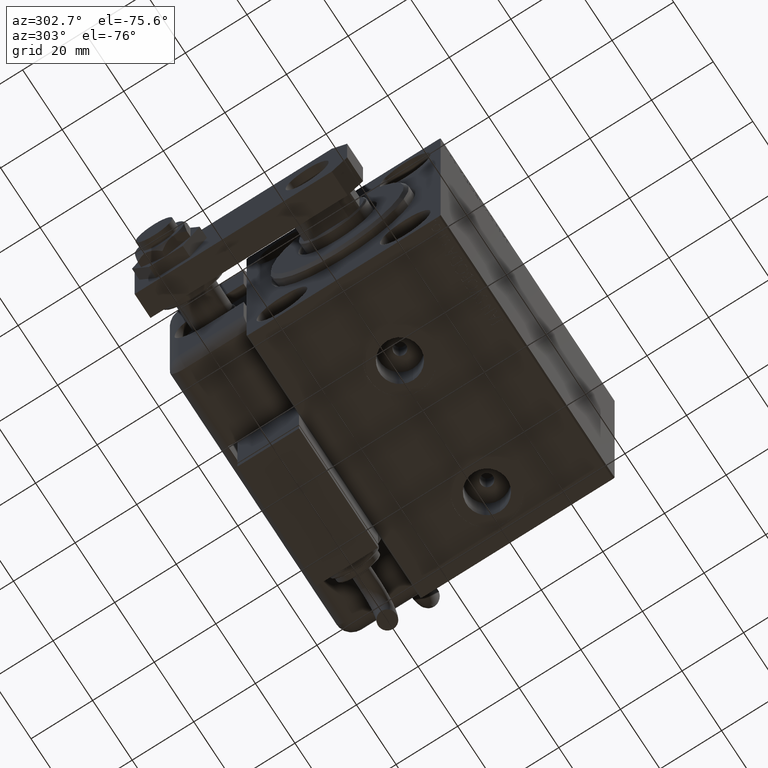
[diagram: clean part render]
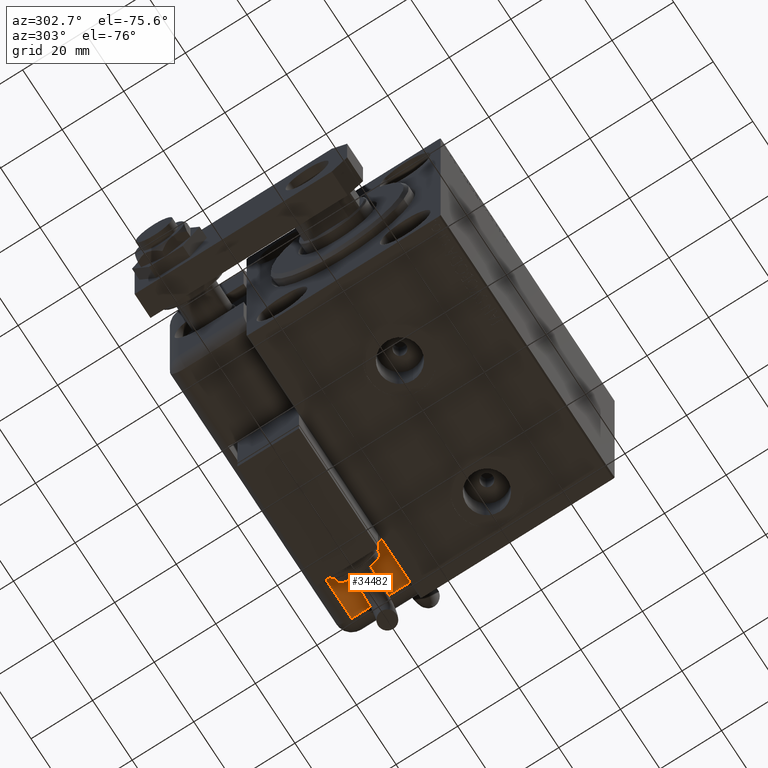
[diagram: same view with one face highlighted and labeled with its STEP entity id]
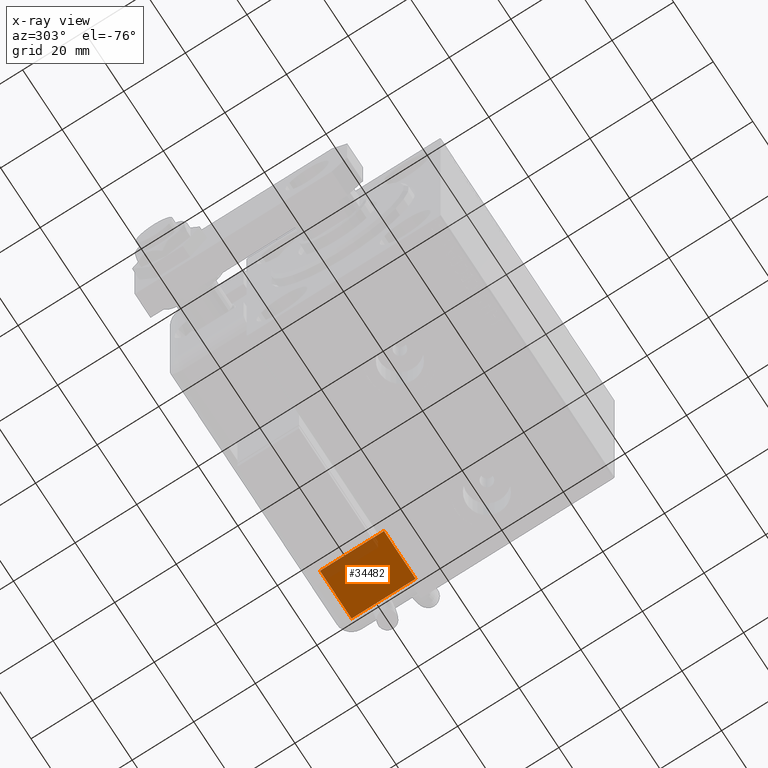
[diagram: x-ray of the same camera — body ghosted, the highlighted face saturated]
A machine part, auxiliary view. The second image highlights one B-rep face of the part: STEP entity #34482.
The next image is the same camera in x-ray: the body ghosted, the highlighted face saturated — about 16% of this face is hidden behind the body in this view.
In plain terms, the highlighted planar face has unit normal (0, 0, 1).
Its self-contained STEP definition (entity closure, byte-faithful):
#2152 = CARTESIAN_POINT ( 'NONE',  ( -28.99999999999999645, 20.79999999999998295, 21.00000000000000355 ) ) ;
#2504 = VECTOR ( 'NONE', #30616, 1000.000000000000000 ) ;
#4242 = DIRECTION ( 'NONE',  ( 1.000000000000000000, 0.000000000000000000, -0.000000000000000000 ) ) ;
#7071 = AXIS2_PLACEMENT_3D ( 'NONE', #55737, #4242, #12898 ) ;
#7696 = VECTOR ( 'NONE', #25505, 1000.000000000000000 ) ;
#10885 = EDGE_CURVE ( 'NONE', #19499, #24761, #35550, .T. ) ;
#11040 = LINE ( 'NONE', #44046, #7696 ) ;
#12391 = LINE ( 'NONE', #45991, #44566 ) ;
#12898 = DIRECTION ( 'NONE',  ( -0.000000000000000000, 0.000000000000000000, -1.000000000000000000 ) ) ;
#15262 = CARTESIAN_POINT ( 'NONE',  ( -28.99999999999999645, -9.421223957302265857E-15, 5.000000000000004441 ) ) ;
#19499 = VERTEX_POINT ( 'NONE', #2152 ) ;
#20819 = EDGE_CURVE ( 'NONE', #19499, #56572, #11040, .T. ) ;
#21636 = VECTOR ( 'NONE', #35101, 1000.000000000000000 ) ;
#24761 = VERTEX_POINT ( 'NONE', #40376 ) ;
#25505 = DIRECTION ( 'NONE',  ( 0.000000000000000000, 0.000000000000000000, -1.000000000000000000 ) ) ;
#29353 = EDGE_CURVE ( 'NONE', #24761, #45510, #30770, .T. ) ;
#30469 = CARTESIAN_POINT ( 'NONE',  ( -28.99999999999999645, -9.421223957302265857E-15, 89.00000000000000000 ) ) ;
#30616 = DIRECTION ( 'NONE',  ( 0.000000000000000000, -1.000000000000000000, 0.000000000000000000 ) ) ;
#30770 = LINE ( 'NONE', #30469, #21636 ) ;
#30909 = CARTESIAN_POINT ( 'NONE',  ( -28.99999999999999645, 22.99999999999998934, 21.00000000000000355 ) ) ;
#33367 = ORIENTED_EDGE ( 'NONE', *, *, #10885, .F. ) ;
#34482 = ADVANCED_FACE ( 'NONE', ( #36933 ), #46804, .F. ) ;
#35101 = DIRECTION ( 'NONE',  ( -0.000000000000000000, -0.000000000000000000, -1.000000000000000000 ) ) ;
#35550 = LINE ( 'NONE', #30909, #2504 ) ;
#36933 = FACE_OUTER_BOUND ( 'NONE', #54925, .T. ) ;
#38242 = ORIENTED_EDGE ( 'NONE', *, *, #52164, .T. ) ;
#40376 = CARTESIAN_POINT ( 'NONE',  ( -28.99999999999999645, -9.421223957302264279E-15, 21.00000000000000355 ) ) ;
#44046 = CARTESIAN_POINT ( 'NONE',  ( -28.99999999999999645, 20.79999999999998295, 89.00000000000000000 ) ) ;
#44566 = VECTOR ( 'NONE', #44772, 1000.000000000000000 ) ;
#44772 = DIRECTION ( 'NONE',  ( 0.000000000000000000, -1.000000000000000000, 0.000000000000000000 ) ) ;
#45510 = VERTEX_POINT ( 'NONE', #15262 ) ;
#45991 = CARTESIAN_POINT ( 'NONE',  ( -28.99999999999999645, -1.040834085586084257E-14, 5.000000000000004441 ) ) ;
#46804 = PLANE ( 'NONE',  #7071 ) ;
#50739 = ORIENTED_EDGE ( 'NONE', *, *, #29353, .F. ) ;
#52086 = CARTESIAN_POINT ( 'NONE',  ( -28.99999999999999645, 20.79999999999998295, 5.000000000000004441 ) ) ;
#52164 = EDGE_CURVE ( 'NONE', #56572, #45510, #12391, .T. ) ;
#52671 = ORIENTED_EDGE ( 'NONE', *, *, #20819, .T. ) ;
#54925 = EDGE_LOOP ( 'NONE', ( #50739, #33367, #52671, #38242 ) ) ;
#55737 = CARTESIAN_POINT ( 'NONE',  ( -28.99999999999999645, 25.79999999999998295, 89.00000000000000000 ) ) ;
#56572 = VERTEX_POINT ( 'NONE', #52086 ) ;